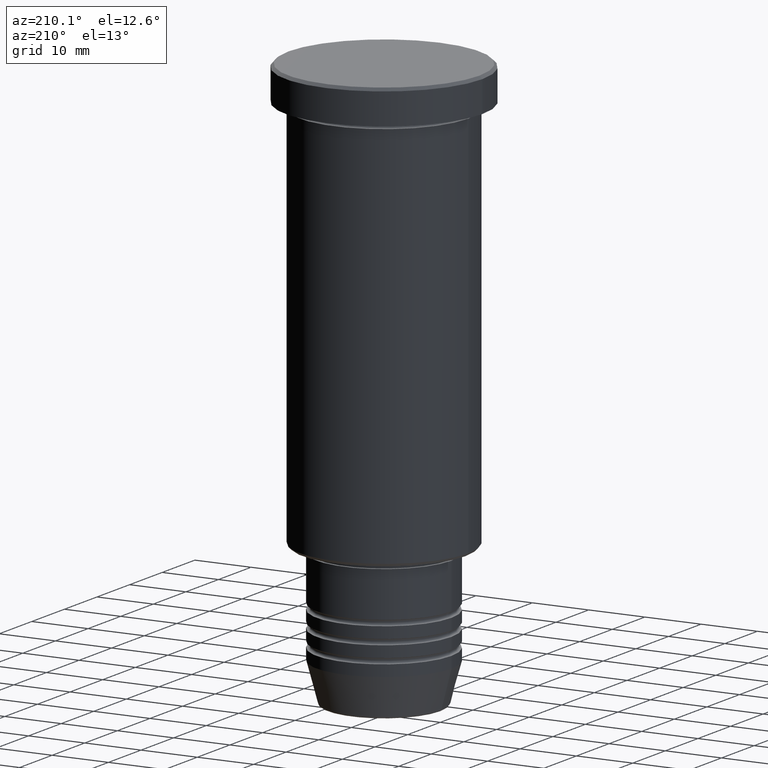
[diagram: clean part render]
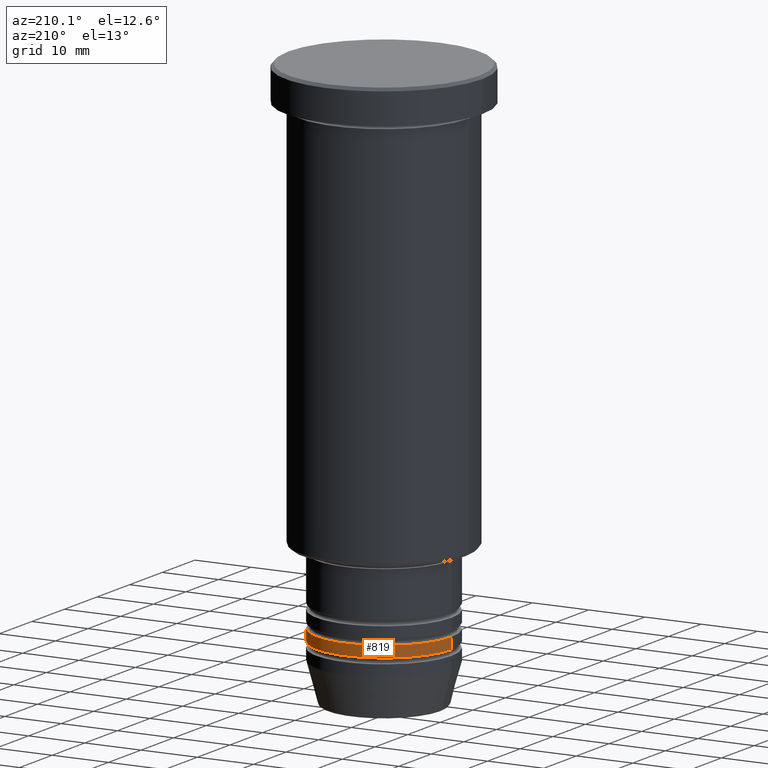
[diagram: same view with one face highlighted and labeled with its STEP entity id]
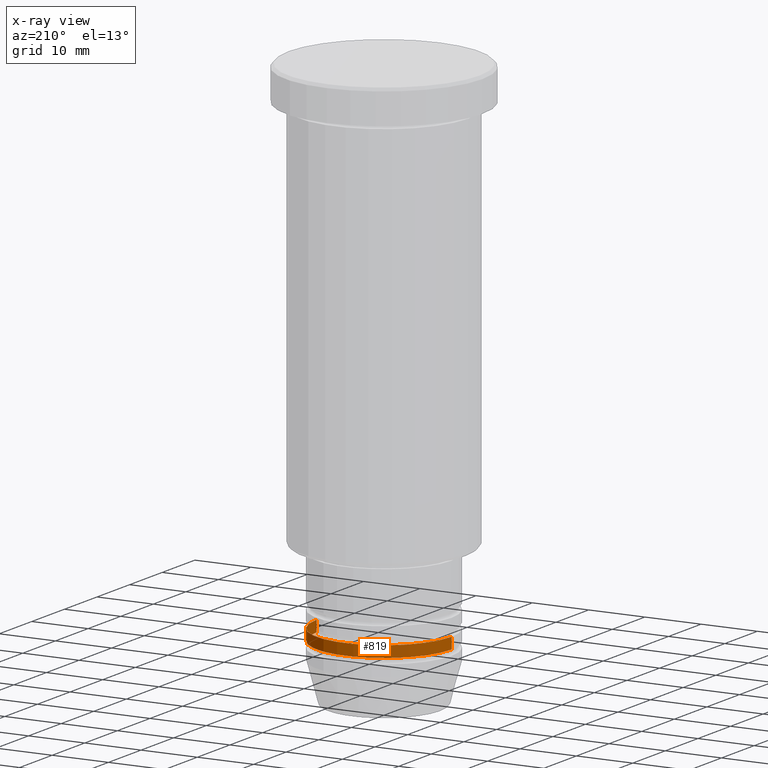
[diagram: x-ray of the same camera — body ghosted, the highlighted face saturated]
A machine part, auxiliary view. The second image highlights one B-rep face of the part: STEP entity #819.
The next image is the same camera in x-ray: the body ghosted, the highlighted face saturated — about 1% of this face is hidden behind the body in this view.
In plain terms, the highlighted cylindrical surface (partial cylindrical patch) has radius 12 mm, axis along (-0, -0, 1).
Its self-contained STEP definition (entity closure, byte-faithful):
#14 = EDGE_LOOP ( 'NONE', ( #294, #488, #693, #556 ) ) ;
#30 = VERTEX_POINT ( 'NONE', #168 ) ;
#39 = FACE_OUTER_BOUND ( 'NONE', #14, .T. ) ;
#153 = AXIS2_PLACEMENT_3D ( 'NONE', #1122, #1036, #654 ) ;
#168 = CARTESIAN_POINT ( 'NONE',  ( -12.00000000000000000, 1.469576158976823947E-15, -90.99999999999998579 ) ) ;
#196 = VECTOR ( 'NONE', #457, 1000.000000000000000 ) ;
#218 = DIRECTION ( 'NONE',  ( 1.000000000000000000, 0.000000000000000000, 0.000000000000000000 ) ) ;
#244 = DIRECTION ( 'NONE',  ( -0.000000000000000000, -0.000000000000000000, 1.000000000000000000 ) ) ;
#269 = CARTESIAN_POINT ( 'NONE',  ( -12.00000000000000000, 1.469576158976823947E-15, 0.000000000000000000 ) ) ;
#293 = LINE ( 'NONE', #1105, #196 ) ;
#294 = ORIENTED_EDGE ( 'NONE', *, *, #433, .T. ) ;
#379 = VERTEX_POINT ( 'NONE', #577 ) ;
#423 = DIRECTION ( 'NONE',  ( 1.000000000000000000, 0.000000000000000000, 0.000000000000000000 ) ) ;
#433 = EDGE_CURVE ( 'NONE', #970, #30, #715, .T. ) ;
#457 = DIRECTION ( 'NONE',  ( -0.000000000000000000, -0.000000000000000000, 1.000000000000000000 ) ) ;
#487 = CYLINDRICAL_SURFACE ( 'NONE', #1043, 12.00000000000000000 ) ;
#488 = ORIENTED_EDGE ( 'NONE', *, *, #1070, .T. ) ;
#535 = CARTESIAN_POINT ( 'NONE',  ( 12.00000000000000000, 0.000000000000000000, -90.99999999999998579 ) ) ;
#556 = ORIENTED_EDGE ( 'NONE', *, *, #1135, .F. ) ;
#577 = CARTESIAN_POINT ( 'NONE',  ( 12.00000000000000000, 0.000000000000000000, -88.99999999999998579 ) ) ;
#619 = VECTOR ( 'NONE', #705, 1000.000000000000000 ) ;
#654 = DIRECTION ( 'NONE',  ( 1.000000000000000000, 0.000000000000000000, 0.000000000000000000 ) ) ;
#693 = ORIENTED_EDGE ( 'NONE', *, *, #969, .F. ) ;
#705 = DIRECTION ( 'NONE',  ( -0.000000000000000000, -0.000000000000000000, 1.000000000000000000 ) ) ;
#715 = CIRCLE ( 'NONE', #153, 12.00000000000000000 ) ;
#724 = LINE ( 'NONE', #269, #619 ) ;
#793 = CARTESIAN_POINT ( 'NONE',  ( -12.00000000000000000, 1.469576158976823947E-15, -88.99999999999998579 ) ) ;
#819 = ADVANCED_FACE ( 'NONE', ( #39 ), #487, .T. ) ;
#821 = CARTESIAN_POINT ( 'NONE',  ( 0.000000000000000000, 0.000000000000000000, -88.99999999999998579 ) ) ;
#836 = CIRCLE ( 'NONE', #855, 12.00000000000000000 ) ;
#855 = AXIS2_PLACEMENT_3D ( 'NONE', #821, #244, #423 ) ;
#957 = DIRECTION ( 'NONE',  ( -0.000000000000000000, -0.000000000000000000, 1.000000000000000000 ) ) ;
#969 = EDGE_CURVE ( 'NONE', #379, #985, #836, .T. ) ;
#970 = VERTEX_POINT ( 'NONE', #535 ) ;
#985 = VERTEX_POINT ( 'NONE', #793 ) ;
#1036 = DIRECTION ( 'NONE',  ( -0.000000000000000000, -0.000000000000000000, 1.000000000000000000 ) ) ;
#1043 = AXIS2_PLACEMENT_3D ( 'NONE', #1155, #957, #218 ) ;
#1070 = EDGE_CURVE ( 'NONE', #30, #985, #724, .T. ) ;
#1105 = CARTESIAN_POINT ( 'NONE',  ( 12.00000000000000000, 0.000000000000000000, 0.000000000000000000 ) ) ;
#1122 = CARTESIAN_POINT ( 'NONE',  ( 0.000000000000000000, 0.000000000000000000, -90.99999999999998579 ) ) ;
#1135 = EDGE_CURVE ( 'NONE', #970, #379, #293, .T. ) ;
#1155 = CARTESIAN_POINT ( 'NONE',  ( 0.000000000000000000, 0.000000000000000000, 0.000000000000000000 ) ) ;